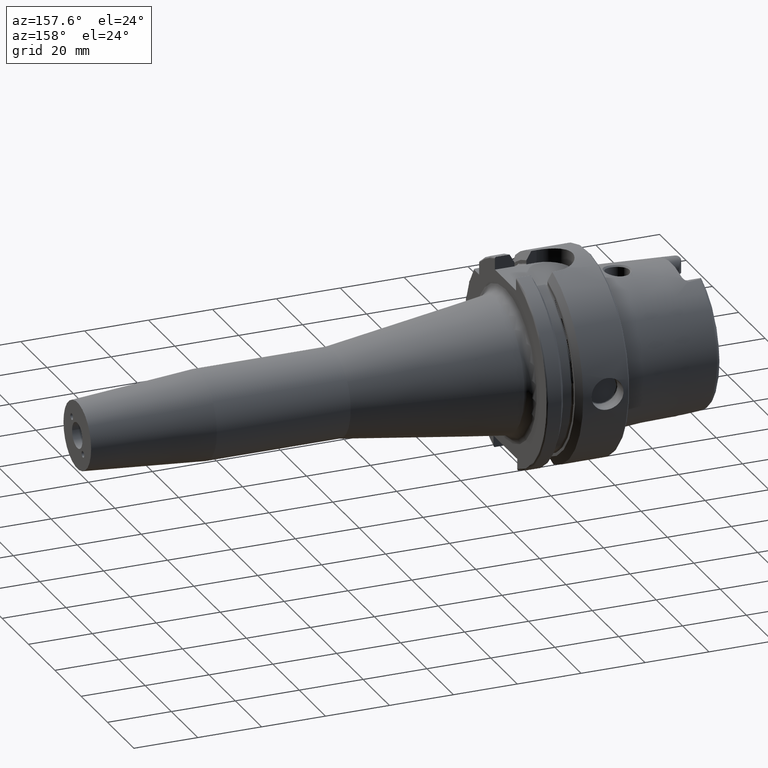
[diagram: clean part render]
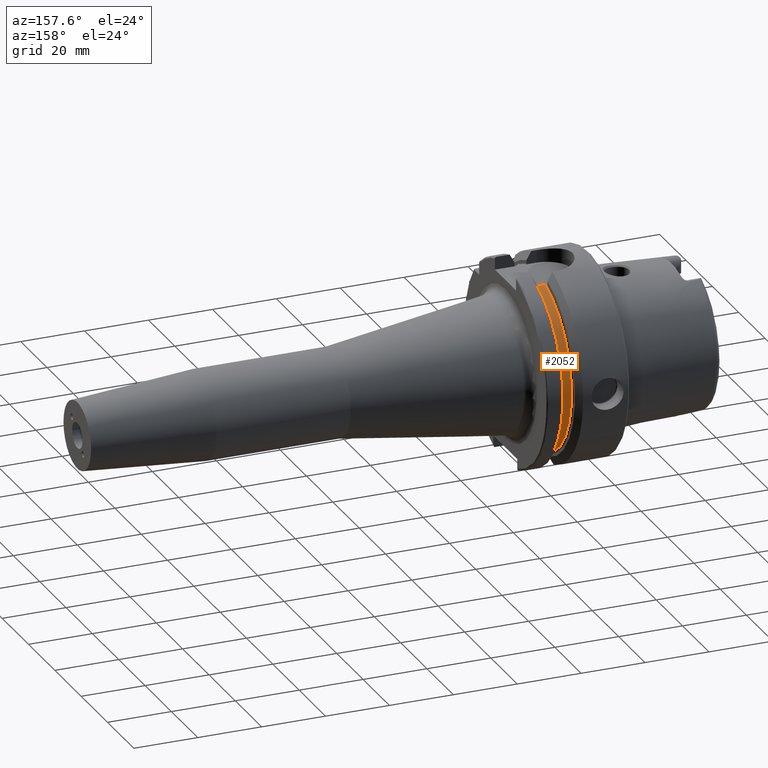
[diagram: same view with one face highlighted and labeled with its STEP entity id]
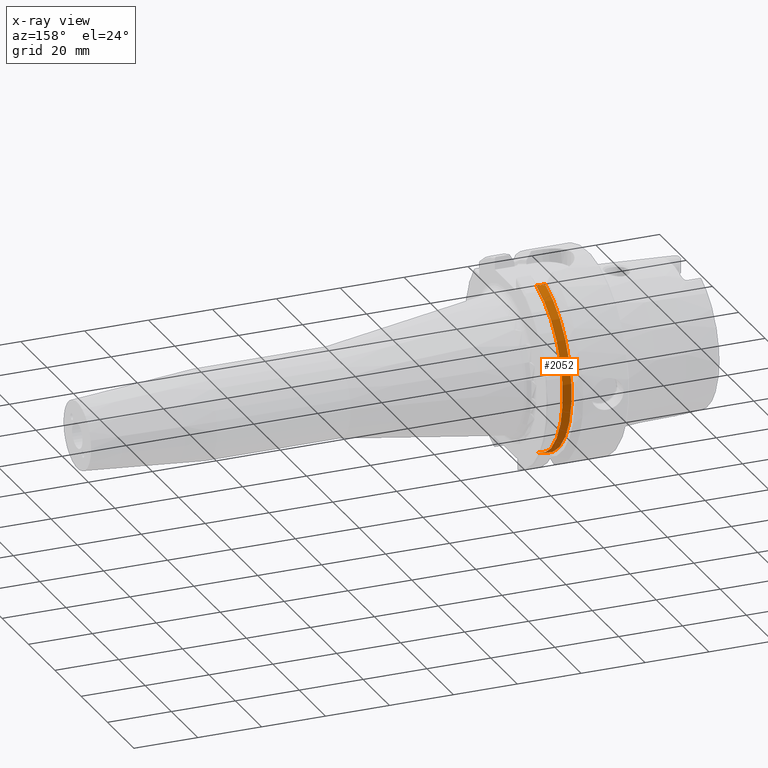
[diagram: x-ray of the same camera — body ghosted, the highlighted face saturated]
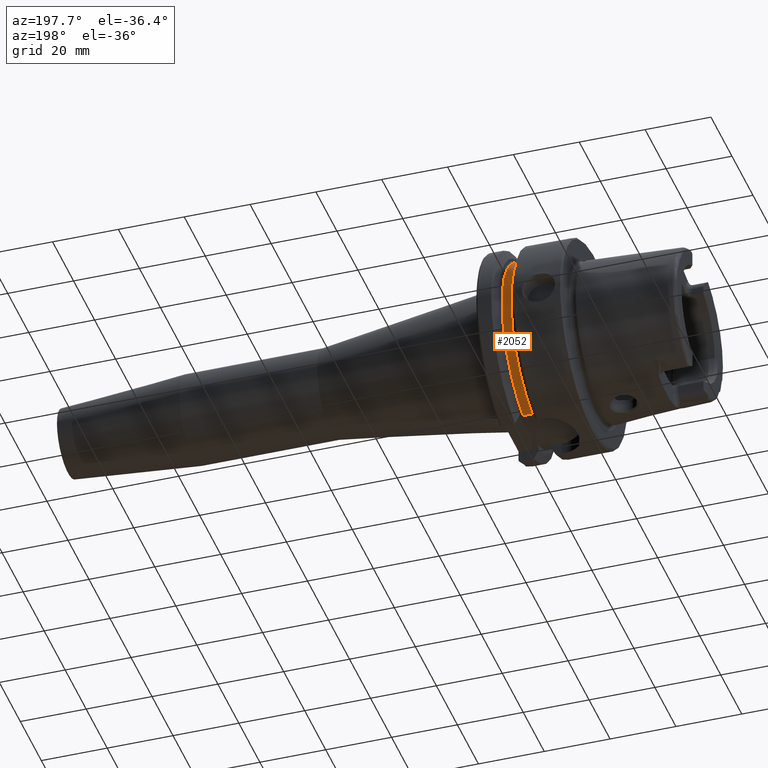
[diagram: same view with one face highlighted and labeled with its STEP entity id]
A machine part, auxiliary view. The second image highlights one B-rep face of the part: STEP entity #2052.
The next image is the same camera in x-ray: the body ghosted, the highlighted face saturated — about 0% of this face is hidden behind the body in this view.
A second angle (auxiliary view) of the same face is appended — the face is thin or edge-on in the first view.
In plain terms, the highlighted cylindrical surface (partial cylindrical patch) has radius 27.5 mm, axis along (1, 0, 0).
Its self-contained STEP definition (entity closure, byte-faithful):
#197=CYLINDRICAL_SURFACE('',#2275,27.5);
#278=FACE_OUTER_BOUND('',#406,.T.);
#406=EDGE_LOOP('',(#1690,#1691,#1692,#1693));
#538=LINE('',#4051,#649);
#549=LINE('',#4200,#660);
#649=VECTOR('',#2702,10.);
#660=VECTOR('',#2761,10.);
#753=CIRCLE('',#2264,27.5);
#759=CIRCLE('',#2276,27.5);
#957=VERTEX_POINT('',#4039);
#958=VERTEX_POINT('',#4050);
#971=VERTEX_POINT('',#4145);
#976=VERTEX_POINT('',#4199);
#1210=EDGE_CURVE('',#958,#957,#538,.T.);
#1234=EDGE_CURVE('',#957,#971,#753,.T.);
#1244=EDGE_CURVE('',#971,#976,#549,.T.);
#1245=EDGE_CURVE('',#958,#976,#759,.T.);
#1690=ORIENTED_EDGE('',*,*,#1210,.T.);
#1691=ORIENTED_EDGE('',*,*,#1234,.T.);
#1692=ORIENTED_EDGE('',*,*,#1244,.T.);
#1693=ORIENTED_EDGE('',*,*,#1245,.F.);
#2052=ADVANCED_FACE('',(#278),#197,.T.);
#2264=AXIS2_PLACEMENT_3D('',#4156,#2736,#2737);
#2275=AXIS2_PLACEMENT_3D('',#4198,#2759,#2760);
#2276=AXIS2_PLACEMENT_3D('',#4201,#2762,#2763);
#2702=DIRECTION('',(-1.,0.,0.));
#2736=DIRECTION('center_axis',(1.,0.,0.));
#2737=DIRECTION('ref_axis',(0.,0.,-1.));
#2759=DIRECTION('center_axis',(1.,0.,0.));
#2760=DIRECTION('ref_axis',(0.,1.,0.));
#2761=DIRECTION('',(1.,0.,0.));
#2762=DIRECTION('center_axis',(1.,0.,0.));
#2763=DIRECTION('ref_axis',(0.,0.,-1.));
#4039=CARTESIAN_POINT('',(16.625,7.34846922834952,-26.5));
#4050=CARTESIAN_POINT('',(19.375,7.34846922834952,-26.5));
#4051=CARTESIAN_POINT('',(18.,7.34846922834952,-26.5));
#4145=CARTESIAN_POINT('',(16.625,7.34846922834952,26.5));
#4156=CARTESIAN_POINT('Origin',(16.625,0.,0.));
#4198=CARTESIAN_POINT('Origin',(18.,0.,0.));
#4199=CARTESIAN_POINT('',(19.375,7.34846922834952,26.5));
#4200=CARTESIAN_POINT('',(18.,7.34846922834952,26.5));
#4201=CARTESIAN_POINT('Origin',(19.375,0.,0.));